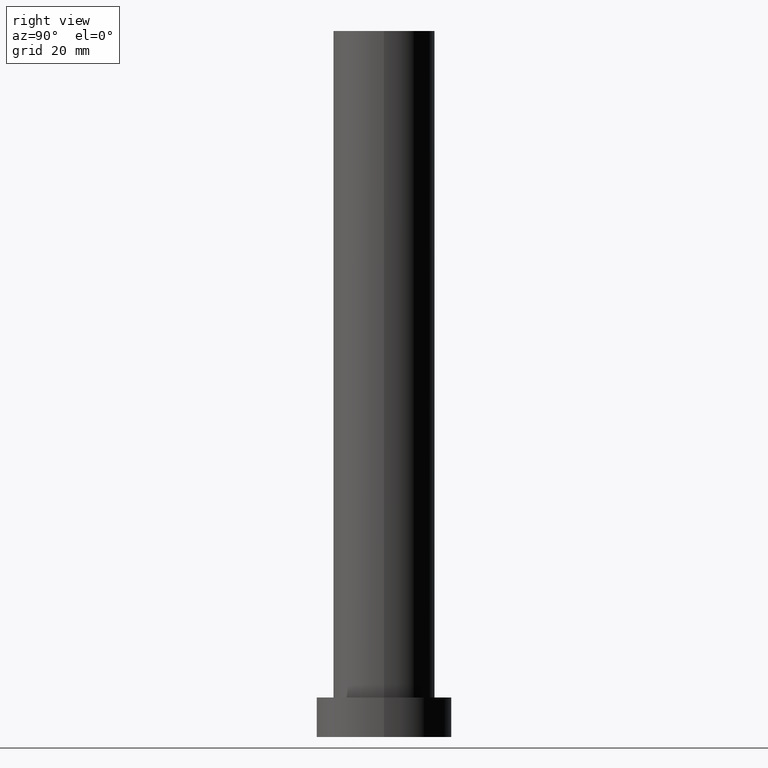
[diagram: clean part render]
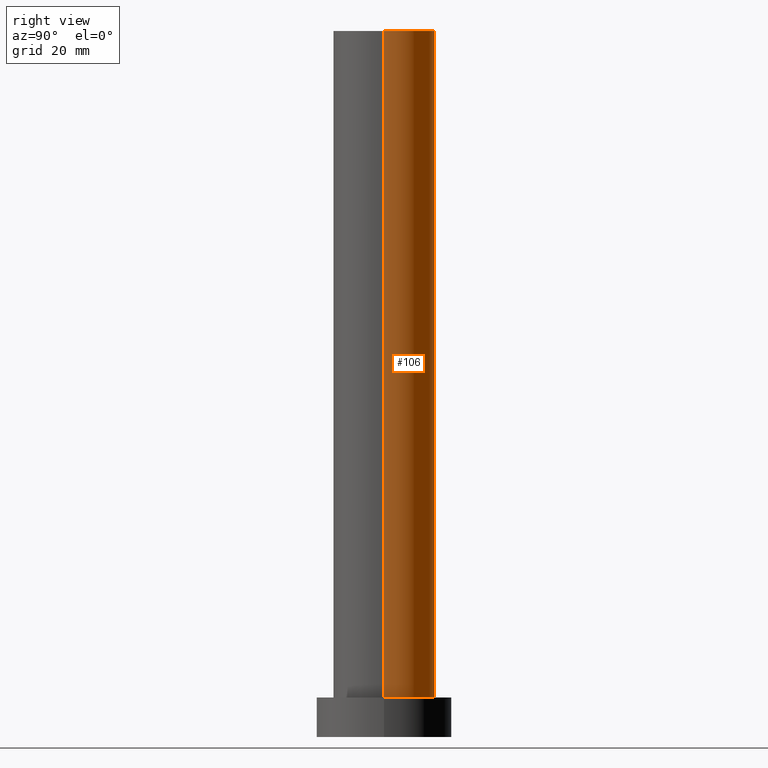
[diagram: same view with one face highlighted and labeled with its STEP entity id]
A machine part, right view. The second image highlights one B-rep face of the part: STEP entity #106.
In plain terms, the highlighted cylindrical surface (partial cylindrical patch) has radius 9 mm, axis along (-0, -0, -1).
Its self-contained STEP definition (entity closure, byte-faithful):
#1 = CARTESIAN_POINT ( 'NONE',  ( 0.000000000000000000, 0.000000000000000000, 125.0000000000000000 ) ) ;
#12 = FACE_OUTER_BOUND ( 'NONE', #253, .T. ) ;
#13 = EDGE_CURVE ( 'NONE', #191, #162, #146, .T. ) ;
#18 = VERTEX_POINT ( 'NONE', #226 ) ;
#21 = DIRECTION ( 'NONE',  ( 1.000000000000000000, 0.000000000000000000, 0.000000000000000000 ) ) ;
#22 = CARTESIAN_POINT ( 'NONE',  ( 9.000000000000000000, 1.102182119232617714E-15, 7.000000000000000000 ) ) ;
#25 = CARTESIAN_POINT ( 'NONE',  ( -9.000000000000000000, 0.000000000000000000, 125.0000000000000000 ) ) ;
#31 = DIRECTION ( 'NONE',  ( 1.000000000000000000, 0.000000000000000000, 0.000000000000000000 ) ) ;
#33 = CYLINDRICAL_SURFACE ( 'NONE', #185, 9.000000000000000000 ) ;
#48 = CIRCLE ( 'NONE', #68, 9.000000000000000000 ) ;
#52 = DIRECTION ( 'NONE',  ( -0.000000000000000000, -0.000000000000000000, -1.000000000000000000 ) ) ;
#56 = LINE ( 'NONE', #221, #61 ) ;
#58 = EDGE_CURVE ( 'NONE', #18, #191, #56, .T. ) ;
#61 = VECTOR ( 'NONE', #52, 1000.000000000000000 ) ;
#66 = ORIENTED_EDGE ( 'NONE', *, *, #198, .F. ) ;
#68 = AXIS2_PLACEMENT_3D ( 'NONE', #1, #169, #31 ) ;
#71 = CARTESIAN_POINT ( 'NONE',  ( -9.000000000000000000, 0.000000000000000000, 7.000000000000000000 ) ) ;
#74 = CARTESIAN_POINT ( 'NONE',  ( 0.000000000000000000, 0.000000000000000000, 7.000000000000000000 ) ) ;
#77 = ORIENTED_EDGE ( 'NONE', *, *, #109, .F. ) ;
#93 = DIRECTION ( 'NONE',  ( 0.000000000000000000, 0.000000000000000000, 1.000000000000000000 ) ) ;
#98 = LINE ( 'NONE', #251, #128 ) ;
#106 = ADVANCED_FACE ( 'NONE', ( #12 ), #33, .T. ) ;
#109 = EDGE_CURVE ( 'NONE', #242, #162, #98, .T. ) ;
#124 = DIRECTION ( 'NONE',  ( -1.000000000000000000, 0.000000000000000000, 0.000000000000000000 ) ) ;
#128 = VECTOR ( 'NONE', #235, 1000.000000000000000 ) ;
#142 = CARTESIAN_POINT ( 'NONE',  ( 0.000000000000000000, 0.000000000000000000, 125.0000000000000000 ) ) ;
#146 = CIRCLE ( 'NONE', #151, 9.000000000000000000 ) ;
#151 = AXIS2_PLACEMENT_3D ( 'NONE', #74, #93, #21 ) ;
#162 = VERTEX_POINT ( 'NONE', #71 ) ;
#169 = DIRECTION ( 'NONE',  ( 0.000000000000000000, 0.000000000000000000, 1.000000000000000000 ) ) ;
#175 = ORIENTED_EDGE ( 'NONE', *, *, #13, .T. ) ;
#181 = ORIENTED_EDGE ( 'NONE', *, *, #58, .T. ) ;
#185 = AXIS2_PLACEMENT_3D ( 'NONE', #142, #212, #124 ) ;
#191 = VERTEX_POINT ( 'NONE', #22 ) ;
#198 = EDGE_CURVE ( 'NONE', #18, #242, #48, .T. ) ;
#212 = DIRECTION ( 'NONE',  ( -0.000000000000000000, -0.000000000000000000, -1.000000000000000000 ) ) ;
#221 = CARTESIAN_POINT ( 'NONE',  ( 9.000000000000000000, 1.102182119232617714E-15, 125.0000000000000000 ) ) ;
#226 = CARTESIAN_POINT ( 'NONE',  ( 9.000000000000000000, 1.102182119232617714E-15, 125.0000000000000000 ) ) ;
#235 = DIRECTION ( 'NONE',  ( -0.000000000000000000, -0.000000000000000000, -1.000000000000000000 ) ) ;
#242 = VERTEX_POINT ( 'NONE', #25 ) ;
#251 = CARTESIAN_POINT ( 'NONE',  ( -9.000000000000000000, 0.000000000000000000, 125.0000000000000000 ) ) ;
#253 = EDGE_LOOP ( 'NONE', ( #66, #181, #175, #77 ) ) ;